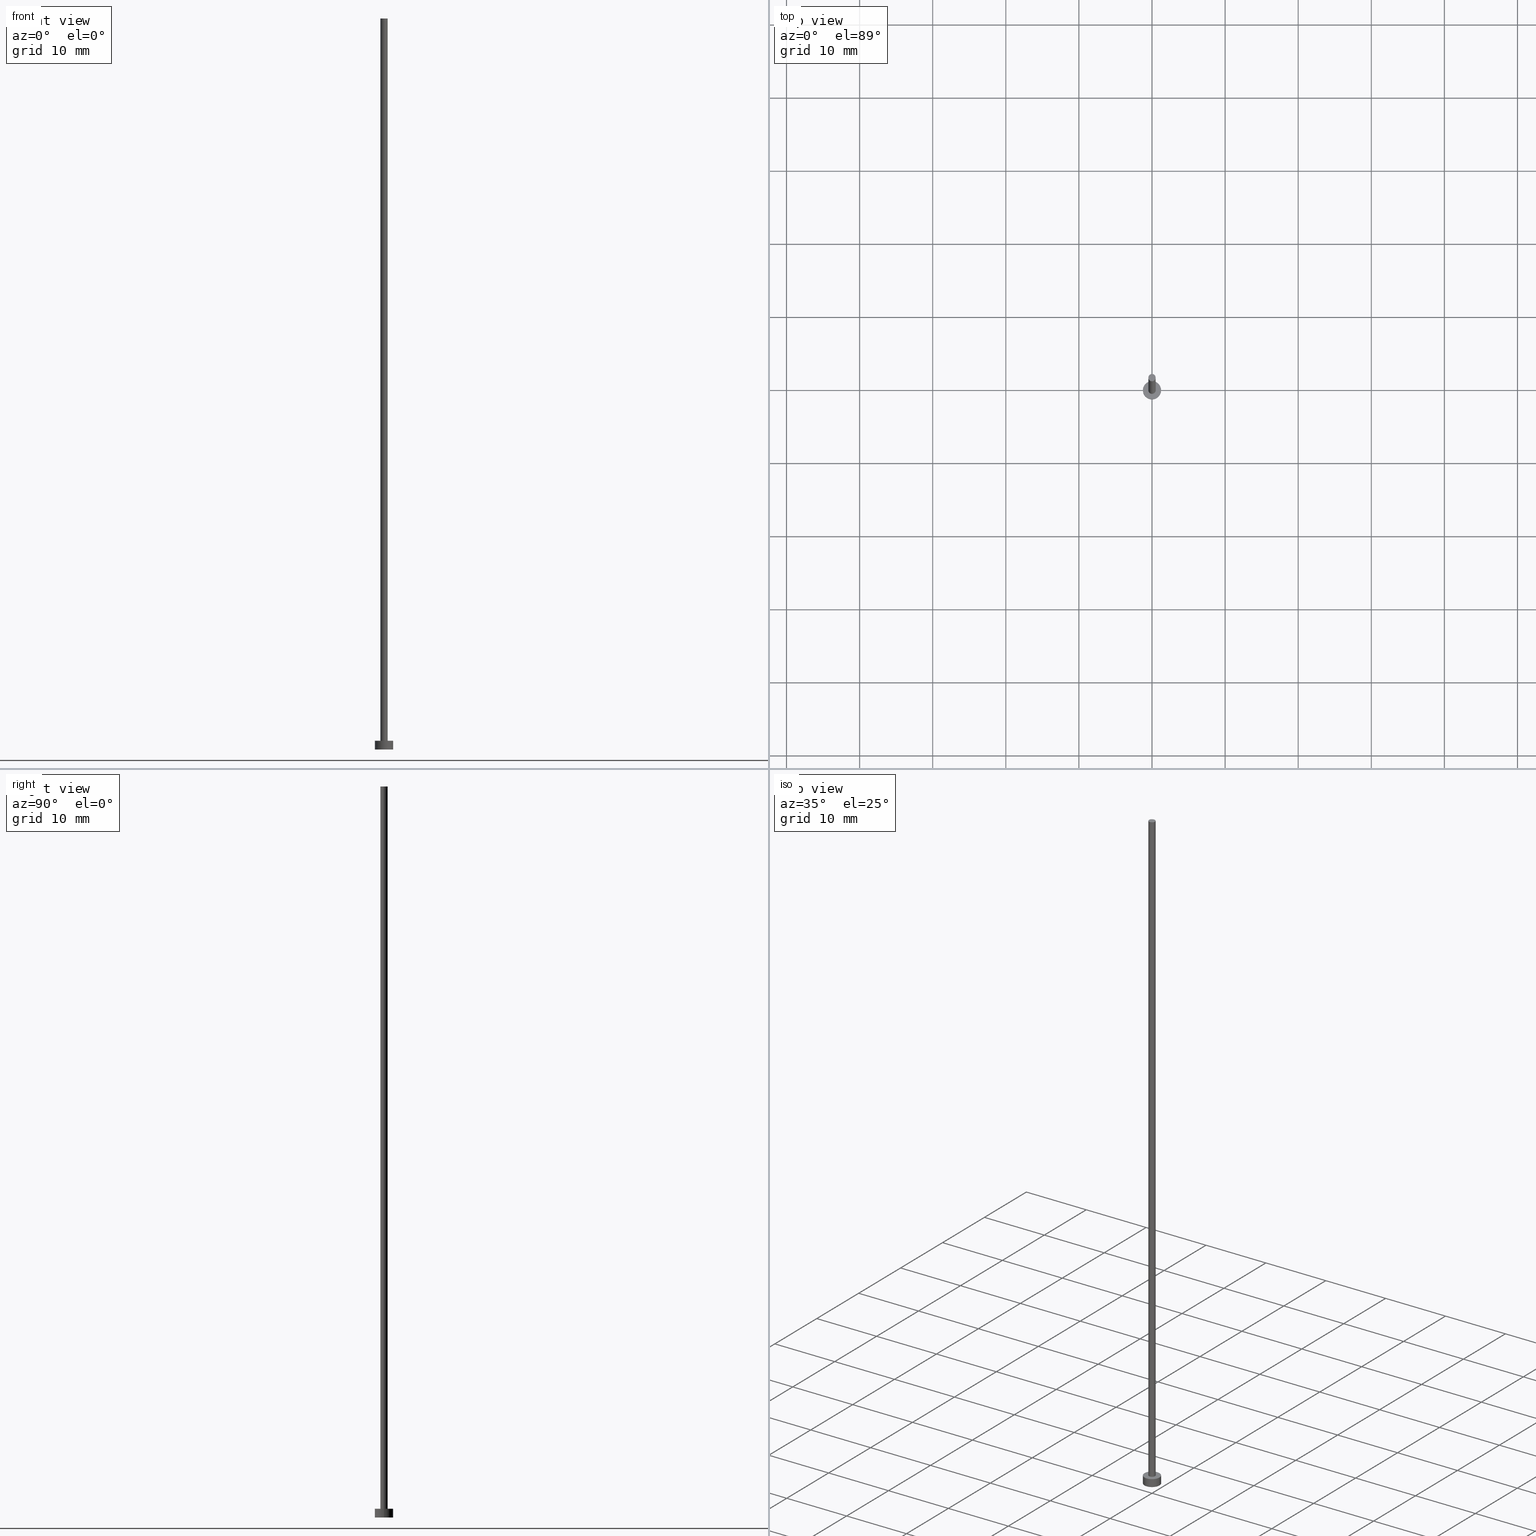
[diagram: canonical four-view strip — front | top / right | iso, engineering-drawing reading convention]
A machine part, canonical four-view strip (front | top / right | iso — engineering-drawing reading convention). The complete STEP part file that produces these views, byte-faithful:
ISO-10303-21;
HEADER;
FILE_DESCRIPTION (( 'STEP AP203' ),
    '1' );
FILE_NAME ('6c10.STEP',
    '2024-12-12T09:54:19',
    ( '' ),
    ( '' ),
    'SwSTEP 2.0',
    'SolidWorks 2019',
    '' );
FILE_SCHEMA (( 'CONFIG_CONTROL_DESIGN' ));
ENDSEC;

DATA;
#1 = PERSON_AND_ORGANIZATION ( #49, #59 ) ;
#2 = DIRECTION ( 'NONE',  ( -1.000000000000000000, 0.000000000000000000, 0.000000000000000000 ) ) ;
#3 = SECURITY_CLASSIFICATION_LEVEL ( 'unclassified' ) ;
#4 = APPLICATION_CONTEXT ( 'configuration controlled 3d designs of mechanical parts and assemblies' ) ;
#5 = PERSON_AND_ORGANIZATION_ROLE ( 'design_owner' ) ;
#6 = ORIENTED_EDGE ( 'NONE', *, *, #161, .T. ) ;
#7 = DIRECTION ( 'NONE',  ( 1.000000000000000000, 0.000000000000000000, 0.000000000000000000 ) ) ;
#8 = ORIENTED_EDGE ( 'NONE', *, *, #161, .F. ) ;
#9 = APPROVAL_PERSON_ORGANIZATION ( #22, #87, #160 ) ;
#10 = EDGE_CURVE ( 'NONE', #130, #148, #77, .T. ) ;
#11 = ORIENTED_EDGE ( 'NONE', *, *, #181, .F. ) ;
#12 = DIRECTION ( 'NONE',  ( -1.000000000000000000, 0.000000000000000000, 0.000000000000000000 ) ) ;
#13 = ADVANCED_FACE ( 'NONE', ( #149 ), #185, .T. ) ;
#14 = LOCAL_TIME ( 10, 54, 19.00000000000000000, #244 ) ;
#15 = CARTESIAN_POINT ( 'NONE',  ( 0.000000000000000000, 0.000000000000000000, 0.000000000000000000 ) ) ;
#16 = LINE ( 'NONE', #35, #36 ) ;
#17 = DIRECTION ( 'NONE',  ( 1.000000000000000000, 0.000000000000000000, 0.000000000000000000 ) ) ;
#18 = AXIS2_PLACEMENT_3D ( 'NONE', #73, #169, #38 ) ;
#19 = FACE_OUTER_BOUND ( 'NONE', #222, .T. ) ;
#20 = AXIS2_PLACEMENT_3D ( 'NONE', #98, #172, #12 ) ;
#21 = DIRECTION ( 'NONE',  ( 0.000000000000000000, 0.000000000000000000, 1.000000000000000000 ) ) ;
#22 = PERSON_AND_ORGANIZATION ( #49, #59 ) ;
#23 = APPROVAL_DATE_TIME ( #66, #87 ) ;
#24 = DIRECTION ( 'NONE',  ( 1.000000000000000000, 0.000000000000000000, -0.000000000000000000 ) ) ;
#25 = ORIENTED_EDGE ( 'NONE', *, *, #145, .F. ) ;
#26 = LOCAL_TIME ( 10, 54, 19.00000000000000000, #44 ) ;
#27 = CARTESIAN_POINT ( 'NONE',  ( 0.000000000000000000, 0.000000000000000000, 1.199999999999999956 ) ) ;
#28 = VERTEX_POINT ( 'NONE', #62 ) ;
#29 = DATE_AND_TIME ( #227, #146 ) ;
#30 = EDGE_LOOP ( 'NONE', ( #51, #246, #165, #11 ) ) ;
#31 = APPROVAL_PERSON_ORGANIZATION ( #147, #224, #129 ) ;
#32 = EDGE_LOOP ( 'NONE', ( #188, #72, #200, #91 ) ) ;
#33 = CYLINDRICAL_SURFACE ( 'NONE', #20, 0.5000000000000000000 ) ;
#34 = CC_DESIGN_DATE_AND_TIME_ASSIGNMENT ( #216, #121, ( #55 ) ) ;
#35 = CARTESIAN_POINT ( 'NONE',  ( -0.5000000000000000000, 0.000000000000000000, 100.0000000000000000 ) ) ;
#36 = VECTOR ( 'NONE', #113, 1000.000000000000000 ) ;
#37 = CARTESIAN_POINT ( 'NONE',  ( 1.250000000000000000, 1.530808498934191571E-16, 0.000000000000000000 ) ) ;
#38 = DIRECTION ( 'NONE',  ( 1.000000000000000000, 0.000000000000000000, 0.000000000000000000 ) ) ;
#39 = DIRECTION ( 'NONE',  ( -0.000000000000000000, -0.000000000000000000, -1.000000000000000000 ) ) ;
#40 = CC_DESIGN_PERSON_AND_ORGANIZATION_ASSIGNMENT ( #180, #5, ( #45 ) ) ;
#41 = PERSON_AND_ORGANIZATION ( #49, #59 ) ;
#42 = SECURITY_CLASSIFICATION ( '', '', #3 ) ;
#43 = APPROVAL_STATUS ( 'not_yet_approved' ) ;
#44 = COORDINATED_UNIVERSAL_TIME_OFFSET ( 1, 0, .AHEAD. ) ;
#45 = PRODUCT ( '6c10', '6c10', '', ( #125 ) ) ;
#46 = PERSON_AND_ORGANIZATION ( #49, #59 ) ;
#47 = FACE_OUTER_BOUND ( 'NONE', #131, .T. ) ;
#48 = SHAPE_DEFINITION_REPRESENTATION ( #74, #63 ) ;
#49 = PERSON ( 'NEUR�EN�', 'NEUR�EN�', 'NEUR�EN�', ('NEUR�EN�'), ('NEUR�EN�'), ('NEUR�EN�') ) ;
#50 = ORIENTED_EDGE ( 'NONE', *, *, #126, .T. ) ;
#51 = ORIENTED_EDGE ( 'NONE', *, *, #82, .F. ) ;
#52 = CC_DESIGN_PERSON_AND_ORGANIZATION_ASSIGNMENT ( #84, #163, ( #42 ) ) ;
#53 = ORIENTED_EDGE ( 'NONE', *, *, #173, .F. ) ;
#54 = CIRCLE ( 'NONE', #219, 0.5000000000000000000 ) ;
#55 = PRODUCT_DEFINITION ( 'NEZN�M�', '', #110, #58 ) ;
#56 = DIRECTION ( 'NONE',  ( 0.000000000000000000, 0.000000000000000000, 1.000000000000000000 ) ) ;
#57 = DIRECTION ( 'NONE',  ( 0.000000000000000000, 0.000000000000000000, 1.000000000000000000 ) ) ;
#58 = DESIGN_CONTEXT ( 'detailed design', #241, 'design' ) ;
#59 = ORGANIZATION ( 'NEUR�EN�', 'NEUR�EN�', '' ) ;
#60 = CARTESIAN_POINT ( 'NONE',  ( -1.250000000000000000, 0.000000000000000000, 1.199999999999999956 ) ) ;
#61 = CC_DESIGN_PERSON_AND_ORGANIZATION_ASSIGNMENT ( #46, #102, ( #110 ) ) ;
#62 = CARTESIAN_POINT ( 'NONE',  ( -0.5000000000000000000, 0.000000000000000000, 1.199999999999999956 ) ) ;
#63 = ADVANCED_BREP_SHAPE_REPRESENTATION ( '6c10', ( #162, #174 ), #225 ) ;
#64 = APPLICATION_PROTOCOL_DEFINITION ( 'international standard', 'config_control_design', 1994, #4 ) ;
#65 = EDGE_CURVE ( 'NONE', #109, #133, #247, .T. ) ;
#66 = DATE_AND_TIME ( #178, #128 ) ;
#67 = CARTESIAN_POINT ( 'NONE',  ( 0.000000000000000000, 0.000000000000000000, 100.0000000000000000 ) ) ;
#68 = AXIS2_PLACEMENT_3D ( 'NONE', #89, #204, #135 ) ;
#69 = CIRCLE ( 'NONE', #215, 1.250000000000000000 ) ;
#70 = EDGE_LOOP ( 'NONE', ( #6, #150 ) ) ;
#71 = ADVANCED_FACE ( 'NONE', ( #231 ), #213, .T. ) ;
#72 = ORIENTED_EDGE ( 'NONE', *, *, #10, .F. ) ;
#73 = CARTESIAN_POINT ( 'NONE',  ( 0.000000000000000000, 0.000000000000000000, 1.199999999999999956 ) ) ;
#74 = PRODUCT_DEFINITION_SHAPE ( 'NONE', 'NONE',  #55 ) ;
#75 = DIRECTION ( 'NONE',  ( 0.000000000000000000, 0.000000000000000000, 1.000000000000000000 ) ) ;
#76 = DIRECTION ( 'NONE',  ( 0.000000000000000000, 0.000000000000000000, 1.000000000000000000 ) ) ;
#77 = CIRCLE ( 'NONE', #223, 1.250000000000000000 ) ;
#78 = ADVANCED_FACE ( 'NONE', ( #155 ), #116, .F. ) ;
#79 = FACE_OUTER_BOUND ( 'NONE', #32, .T. ) ;
#80 = DIRECTION ( 'NONE',  ( -0.000000000000000000, -0.000000000000000000, -1.000000000000000000 ) ) ;
#81 = DATE_AND_TIME ( #214, #248 ) ;
#82 = EDGE_CURVE ( 'NONE', #148, #130, #132, .T. ) ;
#83 =( NAMED_UNIT ( * ) SI_UNIT ( $, .STERADIAN. ) SOLID_ANGLE_UNIT ( ) );
#84 = PERSON_AND_ORGANIZATION ( #49, #59 ) ;
#85 = APPLICATION_PROTOCOL_DEFINITION ( 'international standard', 'config_control_design', 1994, #241 ) ;
#86 = ORIENTED_EDGE ( 'NONE', *, *, #186, .T. ) ;
#87 = APPROVAL ( #176, 'NEUR�EN�' ) ;
#88 = DATE_TIME_ROLE ( 'classification_date' ) ;
#89 = CARTESIAN_POINT ( 'NONE',  ( 0.000000000000000000, 0.000000000000000000, 1.199999999999999956 ) ) ;
#90 = AXIS2_PLACEMENT_3D ( 'NONE', #194, #80, #99 ) ;
#91 = ORIENTED_EDGE ( 'NONE', *, *, #208, .T. ) ;
#92 = VERTEX_POINT ( 'NONE', #118 ) ;
#93 = CC_DESIGN_DATE_AND_TIME_ASSIGNMENT ( #29, #88, ( #42 ) ) ;
#94 = LINE ( 'NONE', #212, #195 ) ;
#95 = DIRECTION ( 'NONE',  ( 0.000000000000000000, 0.000000000000000000, 1.000000000000000000 ) ) ;
#96 = CARTESIAN_POINT ( 'NONE',  ( -1.250000000000000000, 0.000000000000000000, 0.000000000000000000 ) ) ;
#97 = CC_DESIGN_PERSON_AND_ORGANIZATION_ASSIGNMENT ( #144, #217, ( #110 ) ) ;
#98 = CARTESIAN_POINT ( 'NONE',  ( 0.000000000000000000, 0.000000000000000000, 100.0000000000000000 ) ) ;
#99 = DIRECTION ( 'NONE',  ( -1.000000000000000000, 0.000000000000000000, 0.000000000000000000 ) ) ;
#100 = APPROVAL_DATE_TIME ( #81, #104 ) ;
#101 = CLOSED_SHELL ( 'NONE', ( #240, #13, #229, #251, #78, #221, #71 ) ) ;
#102 = PERSON_AND_ORGANIZATION_ROLE ( 'design_supplier' ) ;
#103 = DIRECTION ( 'NONE',  ( -0.000000000000000000, -0.000000000000000000, -1.000000000000000000 ) ) ;
#104 = APPROVAL ( #43, 'NEUR�EN�' ) ;
#105 =( NAMED_UNIT ( * ) PLANE_ANGLE_UNIT ( ) SI_UNIT ( $, .RADIAN. ) );
#106 = DIRECTION ( 'NONE',  ( 0.000000000000000000, 0.000000000000000000, 1.000000000000000000 ) ) ;
#107 = DATE_AND_TIME ( #108, #14 ) ;
#108 = CALENDAR_DATE ( 2024, 12, 12 ) ;
#109 = VERTEX_POINT ( 'NONE', #37 ) ;
#110 = PRODUCT_DEFINITION_FORMATION_WITH_SPECIFIED_SOURCE ( 'LIBOVOLN�', '', #45, .NOT_KNOWN. ) ;
#111 = EDGE_LOOP ( 'NONE', ( #228, #53 ) ) ;
#112 = DIRECTION ( 'NONE',  ( 1.000000000000000000, 0.000000000000000000, 0.000000000000000000 ) ) ;
#113 = DIRECTION ( 'NONE',  ( -0.000000000000000000, -0.000000000000000000, -1.000000000000000000 ) ) ;
#114 = AXIS2_PLACEMENT_3D ( 'NONE', #15, #56, #175 ) ;
#115 = CC_DESIGN_PERSON_AND_ORGANIZATION_ASSIGNMENT ( #41, #218, ( #55 ) ) ;
#116 = PLANE ( 'NONE',  #114 ) ;
#117 = CARTESIAN_POINT ( 'NONE',  ( 0.000000000000000000, 0.000000000000000000, 0.000000000000000000 ) ) ;
#118 = CARTESIAN_POINT ( 'NONE',  ( 0.5000000000000000000, 6.123233995736766036E-17, 1.199999999999999956 ) ) ;
#119 = AXIS2_PLACEMENT_3D ( 'NONE', #171, #76, #232 ) ;
#120 = DIRECTION ( 'NONE',  ( 1.000000000000000000, 0.000000000000000000, 0.000000000000000000 ) ) ;
#121 = DATE_TIME_ROLE ( 'creation_date' ) ;
#122 = COORDINATED_UNIVERSAL_TIME_OFFSET ( 1, 0, .AHEAD. ) ;
#123 = FACE_BOUND ( 'NONE', #111, .T. ) ;
#124 = PRODUCT_RELATED_PRODUCT_CATEGORY ( 'detail', '', ( #45 ) ) ;
#125 = MECHANICAL_CONTEXT ( 'NONE', #4, 'mechanical' ) ;
#126 = EDGE_CURVE ( 'NONE', #28, #92, #167, .T. ) ;
#127 = ORIENTED_EDGE ( 'NONE', *, *, #186, .F. ) ;
#128 = LOCAL_TIME ( 10, 54, 19.00000000000000000, #122 ) ;
#129 = APPROVAL_ROLE ( '' ) ;
#130 = VERTEX_POINT ( 'NONE', #234 ) ;
#131 = EDGE_LOOP ( 'NONE', ( #203, #201 ) ) ;
#132 = CIRCLE ( 'NONE', #119, 1.250000000000000000 ) ;
#133 = VERTEX_POINT ( 'NONE', #96 ) ;
#134 = CYLINDRICAL_SURFACE ( 'NONE', #220, 0.5000000000000000000 ) ;
#135 = DIRECTION ( 'NONE',  ( -1.000000000000000000, 0.000000000000000000, 0.000000000000000000 ) ) ;
#136 = DIRECTION ( 'NONE',  ( 0.000000000000000000, 0.000000000000000000, 1.000000000000000000 ) ) ;
#137 = CIRCLE ( 'NONE', #177, 0.5000000000000000000 ) ;
#138 = CC_DESIGN_SECURITY_CLASSIFICATION ( #42, ( #110 ) ) ;
#139 = CARTESIAN_POINT ( 'NONE',  ( -0.5000000000000000000, 0.000000000000000000, 100.0000000000000000 ) ) ;
#140 = DIRECTION ( 'NONE',  ( 1.000000000000000000, 0.000000000000000000, -0.000000000000000000 ) ) ;
#141 = COORDINATED_UNIVERSAL_TIME_OFFSET ( 1, 0, .AHEAD. ) ;
#142 = CC_DESIGN_APPROVAL ( #224, ( #42 ) ) ;
#143 = CALENDAR_DATE ( 2024, 12, 12 ) ;
#144 = PERSON_AND_ORGANIZATION ( #49, #59 ) ;
#145 = EDGE_CURVE ( 'NONE', #152, #182, #198, .T. ) ;
#146 = LOCAL_TIME ( 10, 54, 19.00000000000000000, #239 ) ;
#147 = PERSON_AND_ORGANIZATION ( #49, #59 ) ;
#148 = VERTEX_POINT ( 'NONE', #237 ) ;
#149 = FACE_OUTER_BOUND ( 'NONE', #30, .T. ) ;
#150 = ORIENTED_EDGE ( 'NONE', *, *, #145, .T. ) ;
#151 = EDGE_CURVE ( 'NONE', #182, #28, #16, .T. ) ;
#152 = VERTEX_POINT ( 'NONE', #249 ) ;
#153 = ORIENTED_EDGE ( 'NONE', *, *, #173, .T. ) ;
#154 = CARTESIAN_POINT ( 'NONE',  ( 0.000000000000000000, 0.000000000000000000, 100.0000000000000000 ) ) ;
#155 = FACE_OUTER_BOUND ( 'NONE', #226, .T. ) ;
#156 = DIRECTION ( 'NONE',  ( 1.000000000000000000, 0.000000000000000000, 0.000000000000000000 ) ) ;
#157 = DIRECTION ( 'NONE',  ( -0.000000000000000000, -0.000000000000000000, -1.000000000000000000 ) ) ;
#158 = DIRECTION ( 'NONE',  ( -0.000000000000000000, -0.000000000000000000, -1.000000000000000000 ) ) ;
#159 =( LENGTH_UNIT ( ) NAMED_UNIT ( * ) SI_UNIT ( .MILLI., .METRE. ) );
#160 = APPROVAL_ROLE ( '' ) ;
#161 = EDGE_CURVE ( 'NONE', #182, #152, #137, .T. ) ;
#162 = MANIFOLD_SOLID_BREP ( 'P�idat vysunut�m3', #101 ) ;
#163 = PERSON_AND_ORGANIZATION_ROLE ( 'classification_officer' ) ;
#164 = AXIS2_PLACEMENT_3D ( 'NONE', #170, #57, #156 ) ;
#165 = ORIENTED_EDGE ( 'NONE', *, *, #65, .T. ) ;
#166 = EDGE_LOOP ( 'NONE', ( #25, #86, #153, #242 ) ) ;
#167 = CIRCLE ( 'NONE', #18, 0.5000000000000000000 ) ;
#168 = EDGE_CURVE ( 'NONE', #148, #109, #253, .T. ) ;
#169 = DIRECTION ( 'NONE',  ( 0.000000000000000000, 0.000000000000000000, 1.000000000000000000 ) ) ;
#170 = CARTESIAN_POINT ( 'NONE',  ( 0.000000000000000000, 0.000000000000000000, 100.0000000000000000 ) ) ;
#171 = CARTESIAN_POINT ( 'NONE',  ( 0.000000000000000000, 0.000000000000000000, 1.199999999999999956 ) ) ;
#172 = DIRECTION ( 'NONE',  ( -0.000000000000000000, -0.000000000000000000, -1.000000000000000000 ) ) ;
#173 = EDGE_CURVE ( 'NONE', #92, #28, #54, .T. ) ;
#174 = AXIS2_PLACEMENT_3D ( 'NONE', #199, #238, #120 ) ;
#175 = DIRECTION ( 'NONE',  ( 1.000000000000000000, 0.000000000000000000, -0.000000000000000000 ) ) ;
#176 = APPROVAL_STATUS ( 'not_yet_approved' ) ;
#177 = AXIS2_PLACEMENT_3D ( 'NONE', #191, #75, #112 ) ;
#178 = CALENDAR_DATE ( 2024, 12, 12 ) ;
#179 = CARTESIAN_POINT ( 'NONE',  ( 0.000000000000000000, 0.000000000000000000, 1.199999999999999956 ) ) ;
#180 = PERSON_AND_ORGANIZATION ( #49, #59 ) ;
#181 = EDGE_CURVE ( 'NONE', #130, #133, #252, .T. ) ;
#182 = VERTEX_POINT ( 'NONE', #139 ) ;
#183 = APPROVAL_DATE_TIME ( #107, #224 ) ;
#184 = ORIENTED_EDGE ( 'NONE', *, *, #151, .T. ) ;
#185 = CYLINDRICAL_SURFACE ( 'NONE', #68, 1.250000000000000000 ) ;
#186 = EDGE_CURVE ( 'NONE', #152, #92, #94, .T. ) ;
#187 = ORIENTED_EDGE ( 'NONE', *, *, #208, .F. ) ;
#188 = ORIENTED_EDGE ( 'NONE', *, *, #168, .F. ) ;
#189 = UNCERTAINTY_MEASURE_WITH_UNIT (LENGTH_MEASURE( 1.000000000000000082E-05 ), #159, 'distance_accuracy_value', 'NONE');
#190 = CARTESIAN_POINT ( 'NONE',  ( 1.250000000000000000, 1.530808498934191571E-16, 1.199999999999999956 ) ) ;
#191 = CARTESIAN_POINT ( 'NONE',  ( 0.000000000000000000, 0.000000000000000000, 100.0000000000000000 ) ) ;
#192 = DIRECTION ( 'NONE',  ( 1.000000000000000000, 0.000000000000000000, 0.000000000000000000 ) ) ;
#193 = DIRECTION ( 'NONE',  ( 0.000000000000000000, 0.000000000000000000, 1.000000000000000000 ) ) ;
#194 = CARTESIAN_POINT ( 'NONE',  ( 0.000000000000000000, 0.000000000000000000, 1.199999999999999956 ) ) ;
#195 = VECTOR ( 'NONE', #39, 1000.000000000000000 ) ;
#196 = APPROVAL_ROLE ( '' ) ;
#197 = PLANE ( 'NONE',  #230 ) ;
#198 = CIRCLE ( 'NONE', #164, 0.5000000000000000000 ) ;
#199 = CARTESIAN_POINT ( 'NONE',  ( 0.000000000000000000, 0.000000000000000000, 0.000000000000000000 ) ) ;
#200 = ORIENTED_EDGE ( 'NONE', *, *, #181, .T. ) ;
#201 = ORIENTED_EDGE ( 'NONE', *, *, #82, .T. ) ;
#202 = APPROVAL_STATUS ( 'not_yet_approved' ) ;
#203 = ORIENTED_EDGE ( 'NONE', *, *, #10, .T. ) ;
#204 = DIRECTION ( 'NONE',  ( -0.000000000000000000, -0.000000000000000000, -1.000000000000000000 ) ) ;
#205 = AXIS2_PLACEMENT_3D ( 'NONE', #154, #250, #140 ) ;
#206 = ORIENTED_EDGE ( 'NONE', *, *, #65, .F. ) ;
#207 = CARTESIAN_POINT ( 'NONE',  ( 0.000000000000000000, 0.000000000000000000, 1.199999999999999956 ) ) ;
#208 = EDGE_CURVE ( 'NONE', #133, #109, #69, .T. ) ;
#209 = CARTESIAN_POINT ( 'NONE',  ( 0.000000000000000000, 0.000000000000000000, 0.000000000000000000 ) ) ;
#210 = DIRECTION ( 'NONE',  ( 1.000000000000000000, 0.000000000000000000, 0.000000000000000000 ) ) ;
#211 = CC_DESIGN_APPROVAL ( #104, ( #55 ) ) ;
#212 = CARTESIAN_POINT ( 'NONE',  ( 0.5000000000000000000, 6.123233995736766036E-17, 100.0000000000000000 ) ) ;
#213 = PLANE ( 'NONE',  #205 ) ;
#214 = CALENDAR_DATE ( 2024, 12, 12 ) ;
#215 = AXIS2_PLACEMENT_3D ( 'NONE', #117, #193, #17 ) ;
#216 = DATE_AND_TIME ( #143, #26 ) ;
#217 = PERSON_AND_ORGANIZATION_ROLE ( 'creator' ) ;
#218 = PERSON_AND_ORGANIZATION_ROLE ( 'creator' ) ;
#219 = AXIS2_PLACEMENT_3D ( 'NONE', #207, #136, #210 ) ;
#220 = AXIS2_PLACEMENT_3D ( 'NONE', #67, #103, #2 ) ;
#221 = ADVANCED_FACE ( 'NONE', ( #19 ), #33, .T. ) ;
#222 = EDGE_LOOP ( 'NONE', ( #127, #8, #184, #50 ) ) ;
#223 = AXIS2_PLACEMENT_3D ( 'NONE', #27, #106, #7 ) ;
#224 = APPROVAL ( #202, 'NEUR�EN�' ) ;
#225 =( GEOMETRIC_REPRESENTATION_CONTEXT ( 3 ) GLOBAL_UNCERTAINTY_ASSIGNED_CONTEXT ( ( #189 ) ) GLOBAL_UNIT_ASSIGNED_CONTEXT ( ( #159, #105, #83 ) ) REPRESENTATION_CONTEXT ( 'NONE', 'WORKASPACE' ) );
#226 = EDGE_LOOP ( 'NONE', ( #187, #206 ) ) ;
#227 = CALENDAR_DATE ( 2024, 12, 12 ) ;
#228 = ORIENTED_EDGE ( 'NONE', *, *, #126, .F. ) ;
#229 = ADVANCED_FACE ( 'NONE', ( #79 ), #236, .T. ) ;
#230 = AXIS2_PLACEMENT_3D ( 'NONE', #179, #21, #24 ) ;
#231 = FACE_OUTER_BOUND ( 'NONE', #70, .T. ) ;
#232 = DIRECTION ( 'NONE',  ( 1.000000000000000000, 0.000000000000000000, 0.000000000000000000 ) ) ;
#233 = VECTOR ( 'NONE', #157, 1000.000000000000000 ) ;
#234 = CARTESIAN_POINT ( 'NONE',  ( -1.250000000000000000, 0.000000000000000000, 1.199999999999999956 ) ) ;
#235 = VECTOR ( 'NONE', #158, 1000.000000000000000 ) ;
#236 = CYLINDRICAL_SURFACE ( 'NONE', #90, 1.250000000000000000 ) ;
#237 = CARTESIAN_POINT ( 'NONE',  ( 1.250000000000000000, 1.530808498934191571E-16, 1.199999999999999956 ) ) ;
#238 = DIRECTION ( 'NONE',  ( 0.000000000000000000, 0.000000000000000000, 1.000000000000000000 ) ) ;
#239 = COORDINATED_UNIVERSAL_TIME_OFFSET ( 1, 0, .AHEAD. ) ;
#240 = ADVANCED_FACE ( 'NONE', ( #255 ), #134, .T. ) ;
#241 = APPLICATION_CONTEXT ( 'configuration controlled 3d designs of mechanical parts and assemblies' ) ;
#242 = ORIENTED_EDGE ( 'NONE', *, *, #151, .F. ) ;
#243 = AXIS2_PLACEMENT_3D ( 'NONE', #209, #95, #192 ) ;
#244 = COORDINATED_UNIVERSAL_TIME_OFFSET ( 1, 0, .AHEAD. ) ;
#245 = APPROVAL_PERSON_ORGANIZATION ( #1, #104, #196 ) ;
#246 = ORIENTED_EDGE ( 'NONE', *, *, #168, .T. ) ;
#247 = CIRCLE ( 'NONE', #243, 1.250000000000000000 ) ;
#248 = LOCAL_TIME ( 10, 54, 19.00000000000000000, #141 ) ;
#249 = CARTESIAN_POINT ( 'NONE',  ( 0.5000000000000000000, 6.123233995736766036E-17, 100.0000000000000000 ) ) ;
#250 = DIRECTION ( 'NONE',  ( 0.000000000000000000, 0.000000000000000000, 1.000000000000000000 ) ) ;
#251 = ADVANCED_FACE ( 'NONE', ( #123, #47 ), #197, .T. ) ;
#252 = LINE ( 'NONE', #60, #235 ) ;
#253 = LINE ( 'NONE', #190, #233 ) ;
#254 = CC_DESIGN_APPROVAL ( #87, ( #110 ) ) ;
#255 = FACE_OUTER_BOUND ( 'NONE', #166, .T. ) ;
ENDSEC;
END-ISO-10303-21;
